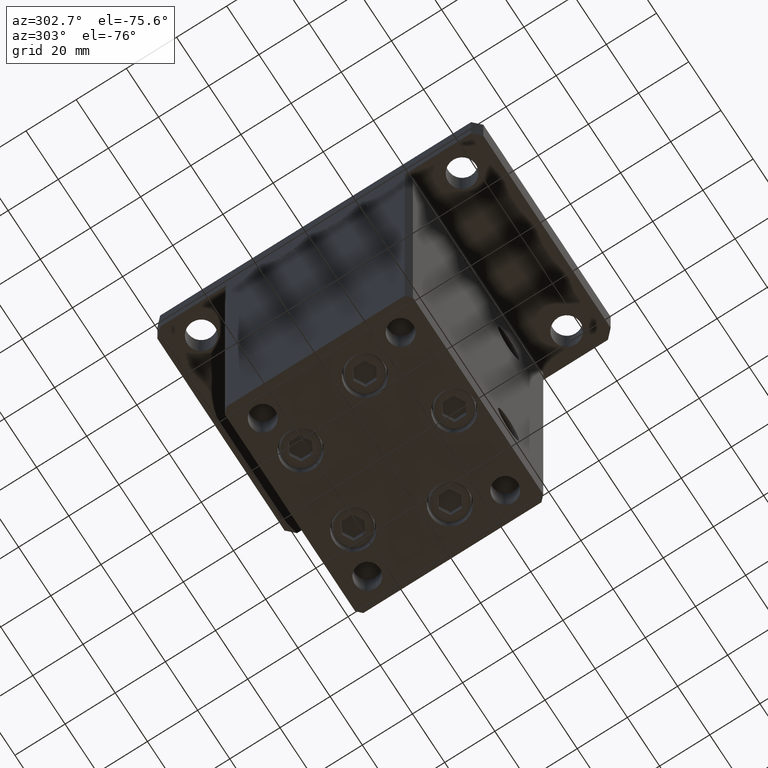
[diagram: clean part render]
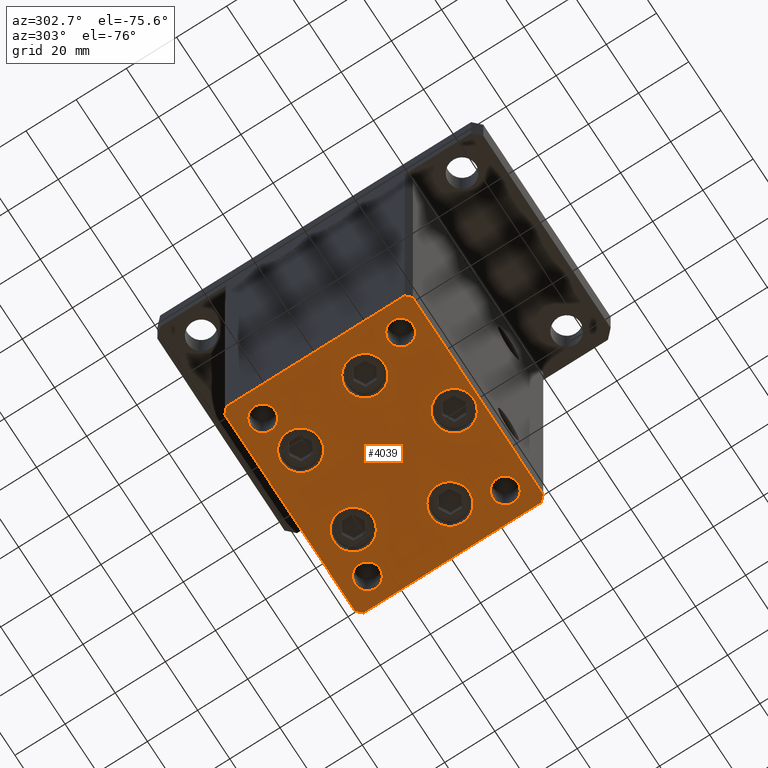
[diagram: same view with one face highlighted and labeled with its STEP entity id]
A machine part, auxiliary view. The second image highlights one B-rep face of the part: STEP entity #4039.
In plain terms, the highlighted planar face has unit normal (0, 0, -1).
Its self-contained STEP definition (entity closure, byte-faithful):
#254 = DIRECTION ( 'NONE',  ( -0.000000000000000000, 0.000000000000000000, 1.000000000000000000 ) ) ;
#317 = LINE ( 'NONE', #46157, #10425 ) ;
#543 = CARTESIAN_POINT ( 'NONE',  ( 18.64865316429776954, -9.333333333333330373, 0.000000000000000000 ) ) ;
#1697 = DIRECTION ( 'NONE',  ( -0.7071067811865474617, 0.7071067811865474617, 0.000000000000000000 ) ) ;
#1720 = AXIS2_PLACEMENT_3D ( 'NONE', #20849, #254, #32830 ) ;
#1730 = VERTEX_POINT ( 'NONE', #29444 ) ;
#2089 = AXIS2_PLACEMENT_3D ( 'NONE', #27684, #14932, #31511 ) ;
#2230 = ORIENTED_EDGE ( 'NONE', *, *, #25683, .T. ) ;
#2341 = ORIENTED_EDGE ( 'NONE', *, *, #4863, .F. ) ;
#2474 = LINE ( 'NONE', #18740, #7112 ) ;
#2564 = CIRCLE ( 'NONE', #1720, 5.000000000000000888 ) ;
#2806 = CARTESIAN_POINT ( 'NONE',  ( 26.39865316429776954, -9.333333333333330373, 0.000000000000000000 ) ) ;
#2958 = EDGE_CURVE ( 'NONE', #51710, #12065, #50171, .T. ) ;
#2977 = CIRCLE ( 'NONE', #33322, 5.000000000000000888 ) ;
#2984 = DIRECTION ( 'NONE',  ( -0.7071067811865463515, -0.7071067811865487940, 0.000000000000000000 ) ) ;
#3132 = VERTEX_POINT ( 'NONE', #18570 ) ;
#3147 = EDGE_CURVE ( 'NONE', #37796, #52696, #45837, .T. ) ;
#3650 = EDGE_CURVE ( 'NONE', #22834, #45092, #8575, .T. ) ;
#3872 = EDGE_CURVE ( 'NONE', #51122, #44861, #35745, .T. ) ;
#4039 = ADVANCED_FACE ( 'NONE', ( #34350, #43563, #9386, #38685, #5306, #47104, #51693, #21843, #14518, #31084 ), #43030, .T. ) ;
#4276 = CARTESIAN_POINT ( 'NONE',  ( 27.50000000000000355, -27.49999999999999645, 0.000000000000000000 ) ) ;
#4863 = EDGE_CURVE ( 'NONE', #52696, #37796, #2564, .T. ) ;
#4920 = DIRECTION ( 'NONE',  ( 0.7071067811865474617, 0.7071067811865474617, 0.000000000000000000 ) ) ;
#5033 = DIRECTION ( 'NONE',  ( 1.000000000000000000, 0.000000000000000000, 0.000000000000000000 ) ) ;
#5306 = FACE_BOUND ( 'NONE', #48943, .T. ) ;
#5455 = EDGE_LOOP ( 'NONE', ( #27986, #9068 ) ) ;
#5877 = ORIENTED_EDGE ( 'NONE', *, *, #37659, .T. ) ;
#6112 = DIRECTION ( 'NONE',  ( 0.000000000000000000, -0.000000000000000000, -1.000000000000000000 ) ) ;
#6162 = VERTEX_POINT ( 'NONE', #23683 ) ;
#6349 = EDGE_LOOP ( 'NONE', ( #2341, #33826 ) ) ;
#6360 = AXIS2_PLACEMENT_3D ( 'NONE', #46366, #20587, #49644 ) ;
#6630 = EDGE_CURVE ( 'NONE', #6162, #36738, #13152, .T. ) ;
#6969 = DIRECTION ( 'NONE',  ( 1.000000000000000000, 1.713307136767217096E-16, 0.000000000000000000 ) ) ;
#7112 = VECTOR ( 'NONE', #35847, 1000.000000000000000 ) ;
#7212 = CARTESIAN_POINT ( 'NONE',  ( -26.39865316429776954, -9.333333333333337478, 0.000000000000000000 ) ) ;
#7505 = CARTESIAN_POINT ( 'NONE',  ( 37.50000000000000000, -27.49999999999999645, 0.000000000000000000 ) ) ;
#7702 = CARTESIAN_POINT ( 'NONE',  ( -42.50000000000000711, 35.49999999999997158, 0.000000000000000000 ) ) ;
#7977 = ORIENTED_EDGE ( 'NONE', *, *, #14290, .T. ) ;
#8478 = EDGE_CURVE ( 'NONE', #20366, #29717, #28959, .T. ) ;
#8575 = CIRCLE ( 'NONE', #15496, 4.999999999999997335 ) ;
#9068 = ORIENTED_EDGE ( 'NONE', *, *, #36960, .F. ) ;
#9084 = CARTESIAN_POINT ( 'NONE',  ( 40.49999999999991473, 37.50000000000000711, 0.000000000000000000 ) ) ;
#9386 = FACE_BOUND ( 'NONE', #43206, .T. ) ;
#9657 = AXIS2_PLACEMENT_3D ( 'NONE', #31876, #6112, #22647 ) ;
#10054 = VERTEX_POINT ( 'NONE', #39985 ) ;
#10385 = DIRECTION ( 'NONE',  ( 0.000000000000000000, -0.000000000000000000, -1.000000000000000000 ) ) ;
#10425 = VECTOR ( 'NONE', #4920, 1000.000000000000114 ) ;
#11227 = ORIENTED_EDGE ( 'NONE', *, *, #53406, .T. ) ;
#11623 = DIRECTION ( 'NONE',  ( 0.000000000000000000, -0.000000000000000000, -1.000000000000000000 ) ) ;
#12065 = VERTEX_POINT ( 'NONE', #30223 ) ;
#12362 = ORIENTED_EDGE ( 'NONE', *, *, #25394, .T. ) ;
#12476 = CIRCLE ( 'NONE', #23738, 4.999999999999997335 ) ;
#12919 = LINE ( 'NONE', #29464, #19154 ) ;
#12966 = EDGE_CURVE ( 'NONE', #22881, #42529, #52172, .T. ) ;
#13060 = VECTOR ( 'NONE', #33035, 1000.000000000000000 ) ;
#13152 = LINE ( 'NONE', #9084, #32941 ) ;
#13632 = DIRECTION ( 'NONE',  ( 0.000000000000000000, -0.000000000000000000, -1.000000000000000000 ) ) ;
#14177 = EDGE_CURVE ( 'NONE', #33790, #51122, #12919, .T. ) ;
#14230 = ORIENTED_EDGE ( 'NONE', *, *, #33649, .T. ) ;
#14290 = EDGE_CURVE ( 'NONE', #42529, #22881, #33059, .T. ) ;
#14335 = CARTESIAN_POINT ( 'NONE',  ( -40.50000000000000711, 37.49999999999997868, 0.000000000000000000 ) ) ;
#14385 = ORIENTED_EDGE ( 'NONE', *, *, #27054, .T. ) ;
#14518 = FACE_OUTER_BOUND ( 'NONE', #22450, .T. ) ;
#14551 = DIRECTION ( 'NONE',  ( 0.000000000000000000, -0.000000000000000000, -1.000000000000000000 ) ) ;
#14932 = DIRECTION ( 'NONE',  ( 0.000000000000000000, -0.000000000000000000, -1.000000000000000000 ) ) ;
#14966 = AXIS2_PLACEMENT_3D ( 'NONE', #15672, #11623, #28704 ) ;
#15496 = AXIS2_PLACEMENT_3D ( 'NONE', #50691, #20376, #32343 ) ;
#15672 = CARTESIAN_POINT ( 'NONE',  ( 32.50000000000000000, -27.49999999999999645, 0.000000000000000000 ) ) ;
#15909 = DIRECTION ( 'NONE',  ( 0.000000000000000000, -0.000000000000000000, -1.000000000000000000 ) ) ;
#15912 = CIRCLE ( 'NONE', #47152, 7.750000000000003553 ) ;
#15932 = CARTESIAN_POINT ( 'NONE',  ( -7.749999999999996447, -28.00000000000000000, 0.000000000000000000 ) ) ;
#16246 = CIRCLE ( 'NONE', #46589, 7.750000000000000000 ) ;
#16356 = EDGE_CURVE ( 'NONE', #29717, #6162, #38873, .T. ) ;
#16505 = EDGE_CURVE ( 'NONE', #43731, #28119, #46100, .T. ) ;
#17197 = DIRECTION ( 'NONE',  ( -1.000000000000000000, -3.426614273534436165E-16, 0.000000000000000000 ) ) ;
#17515 = DIRECTION ( 'NONE',  ( 1.000000000000000000, 0.000000000000000000, 0.000000000000000000 ) ) ;
#17686 = CARTESIAN_POINT ( 'NONE',  ( 3.429011037612589276E-15, -28.00000000000000000, 0.000000000000000000 ) ) ;
#17756 = CIRCLE ( 'NONE', #38587, 7.750000000000003553 ) ;
#18283 = ORIENTED_EDGE ( 'NONE', *, *, #20491, .T. ) ;
#18299 = DIRECTION ( 'NONE',  ( -0.000000000000000000, 0.000000000000000000, 1.000000000000000000 ) ) ;
#18570 = CARTESIAN_POINT ( 'NONE',  ( -37.50000000000000711, -27.49999999999999645, 0.000000000000000000 ) ) ;
#18740 = CARTESIAN_POINT ( 'NONE',  ( -42.50000000000000711, 35.49999999999997158, 0.000000000000000000 ) ) ;
#18768 = CARTESIAN_POINT ( 'NONE',  ( 16.32291334290542295, 22.75000000000000000, 0.000000000000000000 ) ) ;
#18873 = ORIENTED_EDGE ( 'NONE', *, *, #3872, .T. ) ;
#19154 = VECTOR ( 'NONE', #46015, 1000.000000000000000 ) ;
#20366 = VERTEX_POINT ( 'NONE', #28585 ) ;
#20376 = DIRECTION ( 'NONE',  ( 0.000000000000000000, -0.000000000000000000, -1.000000000000000000 ) ) ;
#20491 = EDGE_CURVE ( 'NONE', #12065, #51710, #23705, .T. ) ;
#20532 = CARTESIAN_POINT ( 'NONE',  ( 42.50000000000000711, -35.50000000000000000, 0.000000000000000000 ) ) ;
#20587 = DIRECTION ( 'NONE',  ( 0.000000000000000000, -0.000000000000000000, -1.000000000000000000 ) ) ;
#20849 = CARTESIAN_POINT ( 'NONE',  ( -32.50000000000000000, 27.50000000000000355, 0.000000000000000000 ) ) ;
#21300 = CARTESIAN_POINT ( 'NONE',  ( 34.14865316429776954, -9.333333333333328596, 0.000000000000000000 ) ) ;
#21818 = VERTEX_POINT ( 'NONE', #52589 ) ;
#21843 = FACE_BOUND ( 'NONE', #6349, .T. ) ;
#21973 = EDGE_LOOP ( 'NONE', ( #52195, #2230 ) ) ;
#22035 = CARTESIAN_POINT ( 'NONE',  ( 42.49999999999992895, 35.50000000000000000, 0.000000000000000000 ) ) ;
#22450 = EDGE_LOOP ( 'NONE', ( #45196, #18873, #14385, #50005, #46211, #51619, #25088, #14230 ) ) ;
#22647 = DIRECTION ( 'NONE',  ( 1.000000000000000000, 0.000000000000000000, 0.000000000000000000 ) ) ;
#22834 = VERTEX_POINT ( 'NONE', #7505 ) ;
#22881 = VERTEX_POINT ( 'NONE', #21300 ) ;
#22884 = DIRECTION ( 'NONE',  ( 0.000000000000000000, -0.000000000000000000, -1.000000000000000000 ) ) ;
#23358 = EDGE_LOOP ( 'NONE', ( #39872, #12362 ) ) ;
#23683 = CARTESIAN_POINT ( 'NONE',  ( 40.49999999999991473, 37.50000000000000711, 0.000000000000000000 ) ) ;
#23705 = CIRCLE ( 'NONE', #46215, 7.750000000000000000 ) ;
#23738 = AXIS2_PLACEMENT_3D ( 'NONE', #37367, #37639, #17515 ) ;
#24601 = DIRECTION ( 'NONE',  ( 1.000000000000000000, 0.000000000000000000, 0.000000000000000000 ) ) ;
#25088 = ORIENTED_EDGE ( 'NONE', *, *, #47413, .T. ) ;
#25239 = VERTEX_POINT ( 'NONE', #7702 ) ;
#25394 = EDGE_CURVE ( 'NONE', #1730, #10054, #17756, .T. ) ;
#25396 = CARTESIAN_POINT ( 'NONE',  ( 42.49999999999992895, 35.50000000000000000, 0.000000000000000000 ) ) ;
#25683 = EDGE_CURVE ( 'NONE', #38537, #40785, #41203, .T. ) ;
#26099 = CARTESIAN_POINT ( 'NONE',  ( -32.50000000000000000, -27.49999999999999645, 0.000000000000000000 ) ) ;
#26346 = CARTESIAN_POINT ( 'NONE',  ( 37.50000000000000000, 27.49999999999999645, 0.000000000000000000 ) ) ;
#26726 = VERTEX_POINT ( 'NONE', #45158 ) ;
#26936 = CARTESIAN_POINT ( 'NONE',  ( -40.49999999999999289, -37.50000000000002132, 0.000000000000000000 ) ) ;
#27054 = EDGE_CURVE ( 'NONE', #44861, #20366, #317, .T. ) ;
#27136 = LINE ( 'NONE', #43703, #41257 ) ;
#27289 = CARTESIAN_POINT ( 'NONE',  ( -27.50000000000000000, 27.50000000000000355, 0.000000000000000000 ) ) ;
#27327 = AXIS2_PLACEMENT_3D ( 'NONE', #30580, #14551, #51195 ) ;
#27684 = CARTESIAN_POINT ( 'NONE',  ( -26.39865316429776954, -9.333333333333337478, 0.000000000000000000 ) ) ;
#27986 = ORIENTED_EDGE ( 'NONE', *, *, #16505, .F. ) ;
#28119 = VERTEX_POINT ( 'NONE', #41250 ) ;
#28585 = CARTESIAN_POINT ( 'NONE',  ( 42.50000000000000711, -35.50000000000000000, 0.000000000000000000 ) ) ;
#28704 = DIRECTION ( 'NONE',  ( 1.000000000000000000, 0.000000000000000000, 0.000000000000000000 ) ) ;
#28959 = LINE ( 'NONE', #20532, #13060 ) ;
#29444 = CARTESIAN_POINT ( 'NONE',  ( 24.07291334290542650, 22.75000000000000000, 0.000000000000000000 ) ) ;
#29464 = CARTESIAN_POINT ( 'NONE',  ( -42.50000000000000000, -35.50000000000000711, 0.000000000000000000 ) ) ;
#29717 = VERTEX_POINT ( 'NONE', #25396 ) ;
#30179 = DIRECTION ( 'NONE',  ( 1.000000000000000000, 0.000000000000000000, 0.000000000000000000 ) ) ;
#30195 = DIRECTION ( 'NONE',  ( 0.000000000000000000, -0.000000000000000000, -1.000000000000000000 ) ) ;
#30223 = CARTESIAN_POINT ( 'NONE',  ( 7.750000000000003553, -28.00000000000000000, 0.000000000000000000 ) ) ;
#30547 = DIRECTION ( 'NONE',  ( 1.000000000000000000, 0.000000000000000000, 0.000000000000000000 ) ) ;
#30580 = CARTESIAN_POINT ( 'NONE',  ( -16.32291334290543006, 22.74999999999999645, 0.000000000000000000 ) ) ;
#31066 = VERTEX_POINT ( 'NONE', #39443 ) ;
#31084 = FACE_BOUND ( 'NONE', #45280, .T. ) ;
#31511 = DIRECTION ( 'NONE',  ( 1.000000000000000000, 0.000000000000000000, 0.000000000000000000 ) ) ;
#31876 = CARTESIAN_POINT ( 'NONE',  ( 26.39865316429776954, -9.333333333333330373, 0.000000000000000000 ) ) ;
#32203 = DIRECTION ( 'NONE',  ( 1.000000000000000000, 0.000000000000000000, 0.000000000000000000 ) ) ;
#32343 = DIRECTION ( 'NONE',  ( 1.000000000000000000, 0.000000000000000000, 0.000000000000000000 ) ) ;
#32540 = CIRCLE ( 'NONE', #27327, 7.750000000000000000 ) ;
#32726 = ORIENTED_EDGE ( 'NONE', *, *, #2958, .T. ) ;
#32830 = DIRECTION ( 'NONE',  ( 1.000000000000000000, 0.000000000000000000, 0.000000000000000000 ) ) ;
#32941 = VECTOR ( 'NONE', #17197, 1000.000000000000000 ) ;
#33035 = DIRECTION ( 'NONE',  ( -1.172770800660376741E-15, 1.000000000000000000, 0.000000000000000000 ) ) ;
#33059 = CIRCLE ( 'NONE', #9657, 7.750000000000000000 ) ;
#33135 = VECTOR ( 'NONE', #1697, 1000.000000000000114 ) ;
#33322 = AXIS2_PLACEMENT_3D ( 'NONE', #26099, #13632, #30179 ) ;
#33465 = DIRECTION ( 'NONE',  ( 1.000000000000000000, 0.000000000000000000, 0.000000000000000000 ) ) ;
#33649 = EDGE_CURVE ( 'NONE', #25239, #33790, #2474, .T. ) ;
#33790 = VERTEX_POINT ( 'NONE', #49404 ) ;
#33826 = ORIENTED_EDGE ( 'NONE', *, *, #3147, .F. ) ;
#34350 = FACE_BOUND ( 'NONE', #21973, .T. ) ;
#35148 = AXIS2_PLACEMENT_3D ( 'NONE', #40901, #53360, #24601 ) ;
#35348 = DIRECTION ( 'NONE',  ( 1.000000000000000000, 0.000000000000000000, 0.000000000000000000 ) ) ;
#35716 = EDGE_CURVE ( 'NONE', #3132, #26726, #49697, .T. ) ;
#35745 = LINE ( 'NONE', #52278, #51910 ) ;
#35789 = ORIENTED_EDGE ( 'NONE', *, *, #43294, .T. ) ;
#35847 = DIRECTION ( 'NONE',  ( 9.773090005503140331E-17, -1.000000000000000000, 0.000000000000000000 ) ) ;
#36171 = DIRECTION ( 'NONE',  ( 1.000000000000000000, 0.000000000000000000, 0.000000000000000000 ) ) ;
#36324 = AXIS2_PLACEMENT_3D ( 'NONE', #52534, #15909, #32203 ) ;
#36607 = EDGE_CURVE ( 'NONE', #10054, #1730, #15912, .T. ) ;
#36738 = VERTEX_POINT ( 'NONE', #14335 ) ;
#36960 = EDGE_CURVE ( 'NONE', #28119, #43731, #12476, .T. ) ;
#37367 = CARTESIAN_POINT ( 'NONE',  ( 32.50000000000000000, 27.49999999999999645, 0.000000000000000000 ) ) ;
#37639 = DIRECTION ( 'NONE',  ( -0.000000000000000000, 0.000000000000000000, 1.000000000000000000 ) ) ;
#37659 = EDGE_CURVE ( 'NONE', #45092, #22834, #44424, .T. ) ;
#37796 = VERTEX_POINT ( 'NONE', #44620 ) ;
#38415 = CARTESIAN_POINT ( 'NONE',  ( 0.000000000000000000, 0.000000000000000000, 0.000000000000000000 ) ) ;
#38537 = VERTEX_POINT ( 'NONE', #38801 ) ;
#38587 = AXIS2_PLACEMENT_3D ( 'NONE', #18768, #10385, #35348 ) ;
#38685 = FACE_BOUND ( 'NONE', #50685, .T. ) ;
#38801 = CARTESIAN_POINT ( 'NONE',  ( -8.572913342905431833, 22.74999999999999645, 0.000000000000000000 ) ) ;
#38873 = LINE ( 'NONE', #22035, #33135 ) ;
#39443 = CARTESIAN_POINT ( 'NONE',  ( -34.14865316429776954, -9.333333333333337478, 0.000000000000000000 ) ) ;
#39785 = DIRECTION ( 'NONE',  ( 1.000000000000000000, 0.000000000000000000, 0.000000000000000000 ) ) ;
#39872 = ORIENTED_EDGE ( 'NONE', *, *, #36607, .T. ) ;
#39985 = CARTESIAN_POINT ( 'NONE',  ( 8.572913342905422951, 22.75000000000000000, 0.000000000000000000 ) ) ;
#40785 = VERTEX_POINT ( 'NONE', #44902 ) ;
#40901 = CARTESIAN_POINT ( 'NONE',  ( -16.32291334290543006, 22.74999999999999645, 0.000000000000000000 ) ) ;
#40982 = CARTESIAN_POINT ( 'NONE',  ( 16.32291334290542295, 22.75000000000000000, 0.000000000000000000 ) ) ;
#41023 = DIRECTION ( 'NONE',  ( 1.000000000000000000, 0.000000000000000000, 0.000000000000000000 ) ) ;
#41203 = CIRCLE ( 'NONE', #35148, 7.750000000000000000 ) ;
#41250 = CARTESIAN_POINT ( 'NONE',  ( 27.50000000000000355, 27.49999999999999645, 0.000000000000000000 ) ) ;
#41257 = VECTOR ( 'NONE', #2984, 1000.000000000000000 ) ;
#41266 = EDGE_LOOP ( 'NONE', ( #51820, #5877 ) ) ;
#41540 = AXIS2_PLACEMENT_3D ( 'NONE', #43285, #18299, #5033 ) ;
#41543 = DIRECTION ( 'NONE',  ( -0.000000000000000000, 0.000000000000000000, 1.000000000000000000 ) ) ;
#42396 = AXIS2_PLACEMENT_3D ( 'NONE', #38415, #50894, #30547 ) ;
#42399 = EDGE_CURVE ( 'NONE', #31066, #21818, #47149, .T. ) ;
#42529 = VERTEX_POINT ( 'NONE', #543 ) ;
#43030 = PLANE ( 'NONE',  #42396 ) ;
#43206 = EDGE_LOOP ( 'NONE', ( #7977, #50589 ) ) ;
#43285 = CARTESIAN_POINT ( 'NONE',  ( -32.50000000000000000, 27.50000000000000355, 0.000000000000000000 ) ) ;
#43294 = EDGE_CURVE ( 'NONE', #26726, #3132, #2977, .T. ) ;
#43563 = FACE_BOUND ( 'NONE', #23358, .T. ) ;
#43703 = CARTESIAN_POINT ( 'NONE',  ( -40.50000000000000711, 37.49999999999997868, 0.000000000000000000 ) ) ;
#43731 = VERTEX_POINT ( 'NONE', #26346 ) ;
#44424 = CIRCLE ( 'NONE', #14966, 4.999999999999997335 ) ;
#44620 = CARTESIAN_POINT ( 'NONE',  ( -37.50000000000000711, 27.50000000000000355, 0.000000000000000000 ) ) ;
#44861 = VERTEX_POINT ( 'NONE', #47465 ) ;
#44902 = CARTESIAN_POINT ( 'NONE',  ( -24.07291334290543006, 22.74999999999999645, 0.000000000000000000 ) ) ;
#45092 = VERTEX_POINT ( 'NONE', #4276 ) ;
#45158 = CARTESIAN_POINT ( 'NONE',  ( -27.50000000000000000, -27.49999999999999645, 0.000000000000000000 ) ) ;
#45196 = ORIENTED_EDGE ( 'NONE', *, *, #14177, .T. ) ;
#45280 = EDGE_LOOP ( 'NONE', ( #35789, #46480 ) ) ;
#45298 = EDGE_CURVE ( 'NONE', #40785, #38537, #32540, .T. ) ;
#45837 = CIRCLE ( 'NONE', #41540, 5.000000000000000888 ) ;
#46015 = DIRECTION ( 'NONE',  ( 0.7071067811865463515, -0.7071067811865487940, 0.000000000000000000 ) ) ;
#46100 = CIRCLE ( 'NONE', #50440, 4.999999999999997335 ) ;
#46141 = AXIS2_PLACEMENT_3D ( 'NONE', #2806, #22884, #36171 ) ;
#46157 = CARTESIAN_POINT ( 'NONE',  ( 40.50000000000000000, -37.50000000000000711, 0.000000000000000000 ) ) ;
#46211 = ORIENTED_EDGE ( 'NONE', *, *, #16356, .T. ) ;
#46215 = AXIS2_PLACEMENT_3D ( 'NONE', #17686, #30195, #33465 ) ;
#46366 = CARTESIAN_POINT ( 'NONE',  ( -32.50000000000000000, -27.49999999999999645, 0.000000000000000000 ) ) ;
#46480 = ORIENTED_EDGE ( 'NONE', *, *, #35716, .T. ) ;
#46589 = AXIS2_PLACEMENT_3D ( 'NONE', #7212, #51985, #39785 ) ;
#47104 = FACE_BOUND ( 'NONE', #5455, .T. ) ;
#47149 = CIRCLE ( 'NONE', #2089, 7.750000000000000000 ) ;
#47152 = AXIS2_PLACEMENT_3D ( 'NONE', #40982, #48569, #52361 ) ;
#47413 = EDGE_CURVE ( 'NONE', #36738, #25239, #27136, .T. ) ;
#47465 = CARTESIAN_POINT ( 'NONE',  ( 40.50000000000000000, -37.50000000000000711, 0.000000000000000000 ) ) ;
#48569 = DIRECTION ( 'NONE',  ( 0.000000000000000000, -0.000000000000000000, -1.000000000000000000 ) ) ;
#48943 = EDGE_LOOP ( 'NONE', ( #50315, #11227 ) ) ;
#49404 = CARTESIAN_POINT ( 'NONE',  ( -42.50000000000000000, -35.50000000000000711, 0.000000000000000000 ) ) ;
#49644 = DIRECTION ( 'NONE',  ( 1.000000000000000000, 0.000000000000000000, 0.000000000000000000 ) ) ;
#49697 = CIRCLE ( 'NONE', #6360, 5.000000000000000888 ) ;
#49951 = CARTESIAN_POINT ( 'NONE',  ( 32.50000000000000000, 27.49999999999999645, 0.000000000000000000 ) ) ;
#50005 = ORIENTED_EDGE ( 'NONE', *, *, #8478, .T. ) ;
#50171 = CIRCLE ( 'NONE', #36324, 7.750000000000000000 ) ;
#50315 = ORIENTED_EDGE ( 'NONE', *, *, #42399, .T. ) ;
#50440 = AXIS2_PLACEMENT_3D ( 'NONE', #49951, #41543, #41023 ) ;
#50589 = ORIENTED_EDGE ( 'NONE', *, *, #12966, .T. ) ;
#50685 = EDGE_LOOP ( 'NONE', ( #32726, #18283 ) ) ;
#50691 = CARTESIAN_POINT ( 'NONE',  ( 32.50000000000000000, -27.49999999999999645, 0.000000000000000000 ) ) ;
#50894 = DIRECTION ( 'NONE',  ( -0.000000000000000000, 0.000000000000000000, 1.000000000000000000 ) ) ;
#51122 = VERTEX_POINT ( 'NONE', #26936 ) ;
#51195 = DIRECTION ( 'NONE',  ( 1.000000000000000000, 0.000000000000000000, 0.000000000000000000 ) ) ;
#51619 = ORIENTED_EDGE ( 'NONE', *, *, #6630, .T. ) ;
#51693 = FACE_BOUND ( 'NONE', #41266, .T. ) ;
#51710 = VERTEX_POINT ( 'NONE', #15932 ) ;
#51820 = ORIENTED_EDGE ( 'NONE', *, *, #3650, .T. ) ;
#51910 = VECTOR ( 'NONE', #6969, 1000.000000000000000 ) ;
#51985 = DIRECTION ( 'NONE',  ( 0.000000000000000000, -0.000000000000000000, -1.000000000000000000 ) ) ;
#52172 = CIRCLE ( 'NONE', #46141, 7.750000000000000000 ) ;
#52195 = ORIENTED_EDGE ( 'NONE', *, *, #45298, .T. ) ;
#52278 = CARTESIAN_POINT ( 'NONE',  ( -40.49999999999999289, -37.50000000000002132, 0.000000000000000000 ) ) ;
#52361 = DIRECTION ( 'NONE',  ( 1.000000000000000000, 0.000000000000000000, 0.000000000000000000 ) ) ;
#52534 = CARTESIAN_POINT ( 'NONE',  ( 3.429011037612589276E-15, -28.00000000000000000, 0.000000000000000000 ) ) ;
#52589 = CARTESIAN_POINT ( 'NONE',  ( -18.64865316429776954, -9.333333333333335702, 0.000000000000000000 ) ) ;
#52696 = VERTEX_POINT ( 'NONE', #27289 ) ;
#53360 = DIRECTION ( 'NONE',  ( 0.000000000000000000, -0.000000000000000000, -1.000000000000000000 ) ) ;
#53406 = EDGE_CURVE ( 'NONE', #21818, #31066, #16246, .T. ) ;